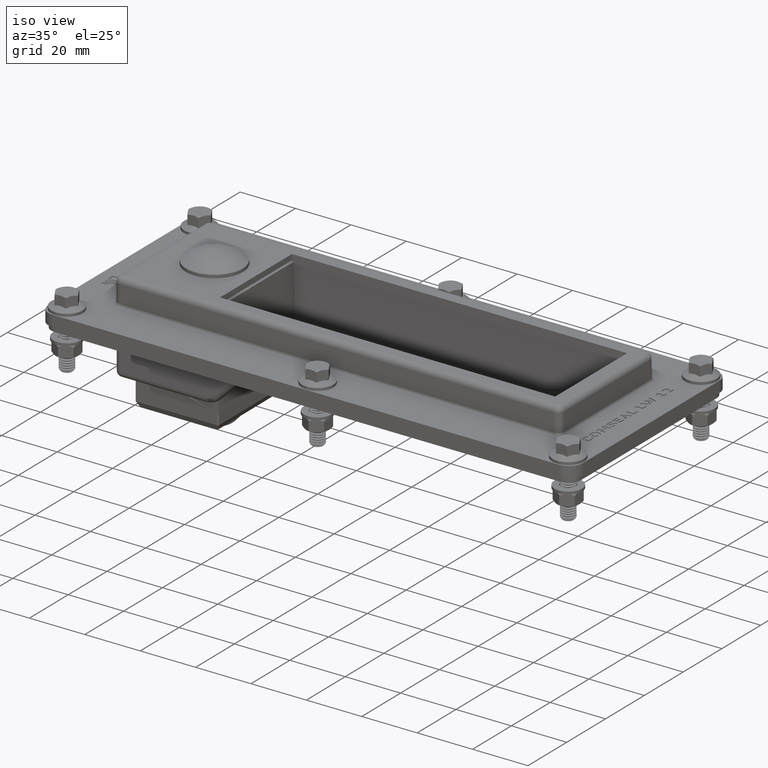
[diagram: clean part render]
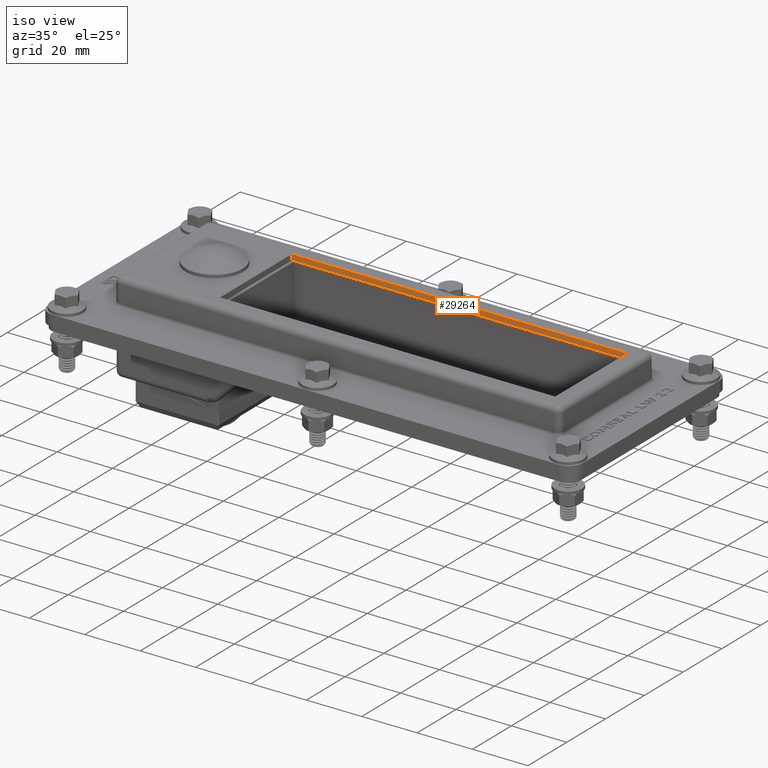
[diagram: same view with one face highlighted and labeled with its STEP entity id]
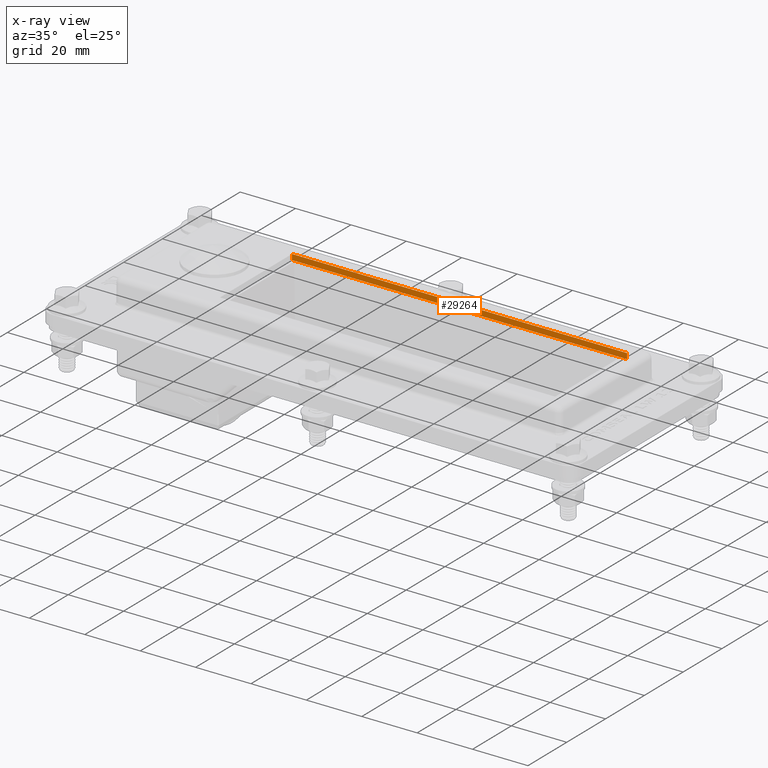
[diagram: x-ray of the same camera — body ghosted, the highlighted face saturated]
A machine part, iso view. The second image highlights one B-rep face of the part: STEP entity #29264.
The next image is the same camera in x-ray: the body ghosted, the highlighted face saturated — about 0% of this face is hidden behind the body in this view.
In plain terms, the highlighted planar face has unit normal (0, 1, 0).
Its self-contained STEP definition (entity closure, byte-faithful):
#16217=CARTESIAN_POINT('',(44.800000000000026,18.550000000000018,20.999999999999996));
#16218=VERTEX_POINT('',#16217);
#16225=CARTESIAN_POINT('',(-76.220740230695668,18.550000000000008,20.999999999999996));
#16226=VERTEX_POINT('',#16225);
#16227=CARTESIAN_POINT('',(44.800000000000026,18.550000000000018,21.0));
#16228=DIRECTION('',(-1.0,0.0,0.0));
#16229=VECTOR('',#16228,121.02074023069569);
#16230=LINE('',#16227,#16229);
#16231=EDGE_CURVE('',#16218,#16226,#16230,.T.);
#17476=CARTESIAN_POINT('',(-76.220740230695668,18.550000000000008,22.999999999999993));
#17477=VERTEX_POINT('',#17476);
#17478=CARTESIAN_POINT('',(44.800000000000026,18.550000000000018,23.0));
#17479=VERTEX_POINT('',#17478);
#17480=CARTESIAN_POINT('',(-76.220740230695668,18.550000000000008,23.0));
#17481=DIRECTION('',(1.0,0.0,0.0));
#17482=VECTOR('',#17481,121.02074023069569);
#17483=LINE('',#17480,#17482);
#17484=EDGE_CURVE('',#17477,#17479,#17483,.T.);
#29214=CARTESIAN_POINT('',(-76.220740230695668,18.550000000000008,22.999999999999993));
#29215=DIRECTION('',(0.0,0.0,-1.0));
#29216=VECTOR('',#29215,1.999999999999996);
#29217=LINE('',#29214,#29216);
#29218=EDGE_CURVE('',#17477,#16226,#29217,.T.);
#29248=CARTESIAN_POINT('',(-104.79999999999995,18.550000000000004,22.0));
#29249=DIRECTION('',(0.0,1.0,0.0));
#29250=DIRECTION('',(0.0,0.0,1.0));
#29251=AXIS2_PLACEMENT_3D('',#29248,#29249,#29250);
#29252=PLANE('',#29251);
#29253=ORIENTED_EDGE('',*,*,#29218,.T.);
#29254=ORIENTED_EDGE('',*,*,#16231,.F.);
#29255=CARTESIAN_POINT('',(44.800000000000026,18.550000000000018,21.0));
#29256=DIRECTION('',(0.0,0.0,1.0));
#29257=VECTOR('',#29256,1.999999999999996);
#29258=LINE('',#29255,#29257);
#29259=EDGE_CURVE('',#16218,#17479,#29258,.T.);
#29260=ORIENTED_EDGE('',*,*,#29259,.T.);
#29261=ORIENTED_EDGE('',*,*,#17484,.F.);
#29262=EDGE_LOOP('',(#29253,#29254,#29260,#29261));
#29263=FACE_OUTER_BOUND('',#29262,.T.);
#29264=ADVANCED_FACE('',(#29263),#29252,.F.);